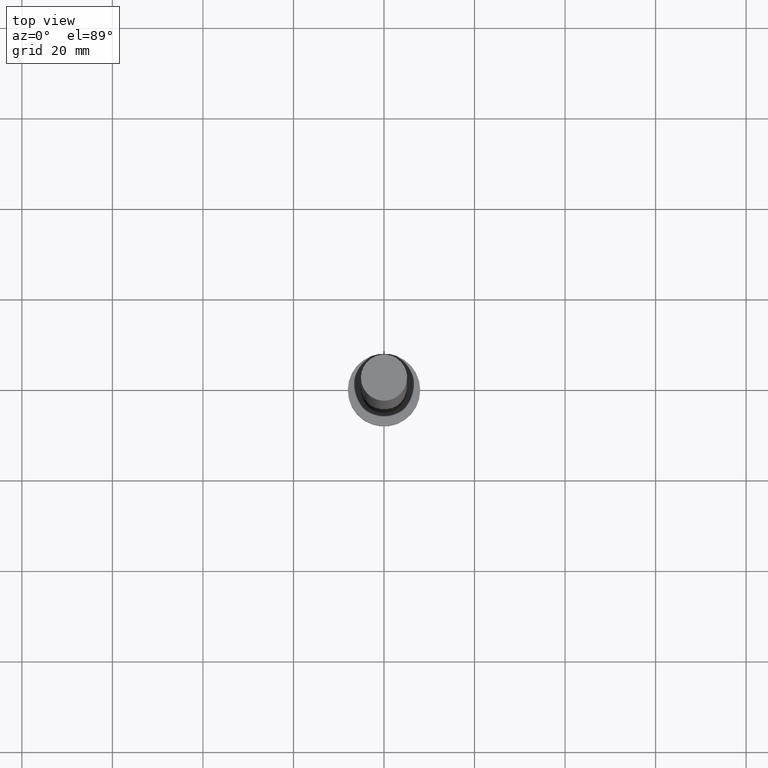
[diagram: clean part render]
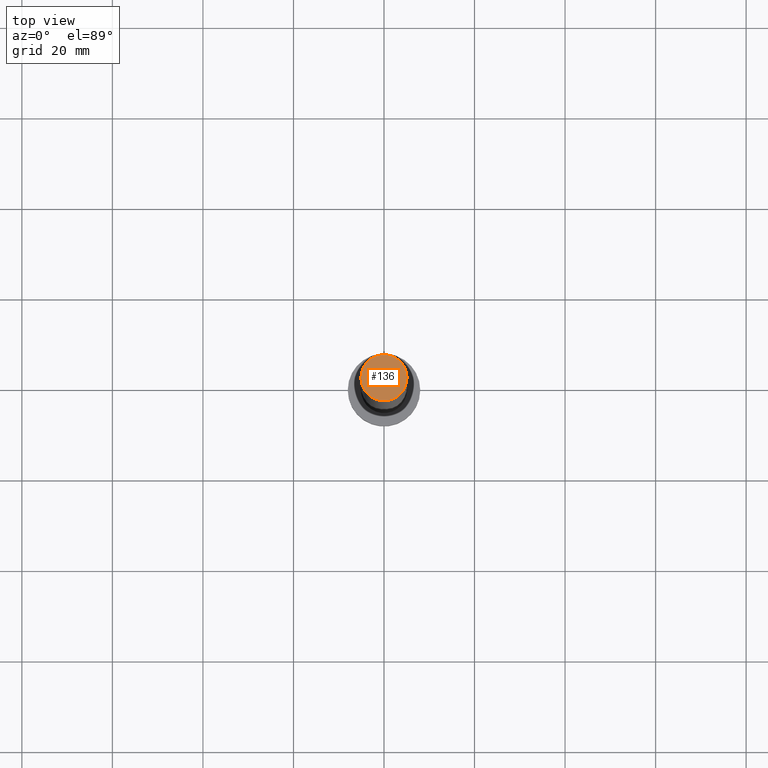
[diagram: same view with one face highlighted and labeled with its STEP entity id]
A machine part, top view. The second image highlights one B-rep face of the part: STEP entity #136.
In plain terms, the highlighted planar face has unit normal (0, 0, 1).
Its self-contained STEP definition (entity closure, byte-faithful):
#10 = DIRECTION ( 'NONE',  ( 0.000000000000000000, 0.000000000000000000, 1.000000000000000000 ) ) ;
#12 = DIRECTION ( 'NONE',  ( 1.000000000000000000, 0.000000000000000000, -0.000000000000000000 ) ) ;
#14 = DIRECTION ( 'NONE',  ( 0.000000000000000000, 0.000000000000000000, 1.000000000000000000 ) ) ;
#45 = VERTEX_POINT ( 'NONE', #147 ) ;
#50 = DIRECTION ( 'NONE',  ( 1.000000000000000000, 0.000000000000000000, 0.000000000000000000 ) ) ;
#69 = PLANE ( 'NONE',  #231 ) ;
#74 = CIRCLE ( 'NONE', #135, 5.099999999999999645 ) ;
#87 = CIRCLE ( 'NONE', #185, 5.099999999999999645 ) ;
#109 = EDGE_CURVE ( 'NONE', #145, #45, #74, .T. ) ;
#115 = CARTESIAN_POINT ( 'NONE',  ( -5.099999999999999645, 0.000000000000000000, 160.0000000000000000 ) ) ;
#129 = EDGE_CURVE ( 'NONE', #45, #145, #87, .T. ) ;
#131 = CARTESIAN_POINT ( 'NONE',  ( 0.000000000000000000, 0.000000000000000000, 160.0000000000000000 ) ) ;
#135 = AXIS2_PLACEMENT_3D ( 'NONE', #183, #166, #50 ) ;
#136 = ADVANCED_FACE ( 'NONE', ( #146 ), #69, .T. ) ;
#145 = VERTEX_POINT ( 'NONE', #115 ) ;
#146 = FACE_OUTER_BOUND ( 'NONE', #180, .T. ) ;
#147 = CARTESIAN_POINT ( 'NONE',  ( 5.099999999999999645, 6.245698675651500839E-16, 160.0000000000000000 ) ) ;
#166 = DIRECTION ( 'NONE',  ( 0.000000000000000000, 0.000000000000000000, 1.000000000000000000 ) ) ;
#178 = ORIENTED_EDGE ( 'NONE', *, *, #129, .T. ) ;
#180 = EDGE_LOOP ( 'NONE', ( #203, #178 ) ) ;
#183 = CARTESIAN_POINT ( 'NONE',  ( 0.000000000000000000, 0.000000000000000000, 160.0000000000000000 ) ) ;
#185 = AXIS2_PLACEMENT_3D ( 'NONE', #131, #14, #205 ) ;
#203 = ORIENTED_EDGE ( 'NONE', *, *, #109, .T. ) ;
#205 = DIRECTION ( 'NONE',  ( 1.000000000000000000, 0.000000000000000000, 0.000000000000000000 ) ) ;
#209 = CARTESIAN_POINT ( 'NONE',  ( 0.000000000000000000, 0.000000000000000000, 160.0000000000000000 ) ) ;
#231 = AXIS2_PLACEMENT_3D ( 'NONE', #209, #10, #12 ) ;